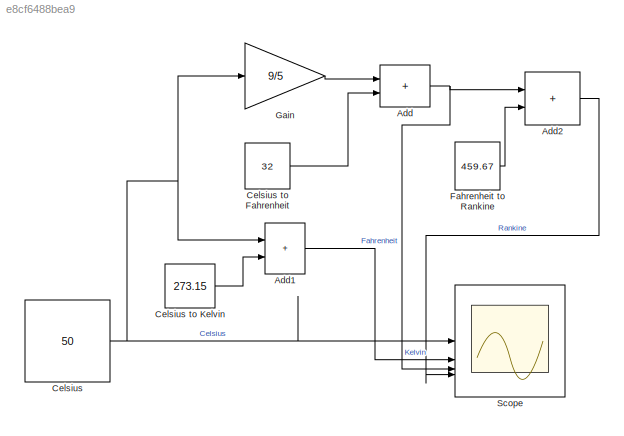
MODEL slx_e8cf6488bea9
KIND model
CONFIG AbsTol = auto
CONFIG EnableMultiTasking = off
CONFIG FixedStep = auto
CONFIG MaxStep = auto
CONFIG MinStep = auto
CONFIG RelTol = 1e-3
CONFIG SampleTimeConstraint = Unconstrained
CONFIG SolverName = VariableStepAuto
CONFIG StartTime = 0.0
CONFIG StopTime = 10.0
BLOCK [Sum] Add
  IconShape = rectangular
BLOCK [Sum] Add1
  IconShape = rectangular
BLOCK [Sum] Add2
  IconShape = rectangular
BLOCK [Constant] Celsius 
  Value = 50
BLOCK [Constant] Celsius to Fahrenheit
  Value = 32
BLOCK [Constant] Celsius to Kelvin 
  Value = 273.15
BLOCK [Constant] Fahrenheit to Rankine
  Value = 459.67
BLOCK [Gain] Gain
  Gain = 9/5
BLOCK [Scope] Scope
  ActiveDisplayYMaximum = 600
  ActiveDisplayYMinimum = 0
  ContainerLayout = {"WindowBounds":[-9999,1369,1534,759]}
  Floating = off
  GraphicalSettings = {"Style":{"BackgroundColor":[0.12941176470588237,0.12941176470588237,0.12941176470588237],"AxesColor":[0.07058823529411765,0.07058823529411765,0.07058823529411765],"LabelsColor":[0.8509803921568627,0.8509803921568627,0.8509803921568627],"PreserveColors":false,"Visible":[true,true,true,true],"LineStyle":["-","-","-","-"],"LineWidth":[1.5,1.5,1.5,1.5],"BarWidth":[0.9,0.9,0.9,0.9],"LineColor":[[1,1,0...<+3215ch>
  LayoutDimensionsString = [2 2]
  MultipleDisplayCache = [{"MaxYLimMag":648.12875000000008,"MaxYLimReal":600,"MinYLimMag":0,"MinYLimReal":0,"PlotAsMagnitudePhase":false,"ShowGrid":true,"ShowLegend":true,"Title":"%<SignalLabel>","YLabel":""},{"MaxYLimMag":648.12875000000008,"MaxYLimReal":648.12875000000008,"MinYLimMag":0,"MinYLimReal":-16.458749999999995,"PlotAsMagnitudePhase":false,"ShowGrid":true,"ShowLegend":true,"Title":"%<SignalLabel>","YLabel":""},...<+432ch>
  NumInputPorts = 4
  OpenAtSimulationStart = on
  SampleTime = 10
  ShowLegend = on
  Visible = on
  WasSavedAsWebScope = on
  WindowPosition = [1195.000000,1.000000,342.000000,761.000000,]
LINE Add1:1 -> Scope:2
LINE Add2:1 -> Scope:4
NET Add:1 -> Add2:1, Scope:3
NET Celsius :1 -> Add1:1, Gain:1, Scope:1
LINE Celsius to Fahrenheit:1 -> Add:2
LINE Celsius to Kelvin :1 -> Add1:2
LINE Fahrenheit to Rankine:1 -> Add2:2
LINE Gain:1 -> Add:1
note: NET lines group one-source signal fan-out (src -> all destinations, sorted); 1:1 wires keep LINE
